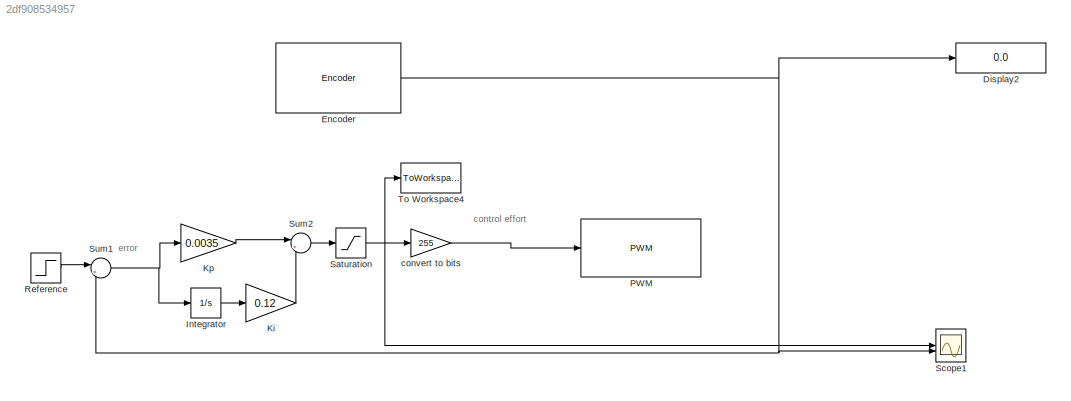
MODEL slx_2df908534957
KIND model
CONFIG AbsTol = auto
CONFIG EnableMultiTasking = on
CONFIG FixedStep = 0.1
CONFIG MaxStep = auto
CONFIG MinStep = auto
CONFIG RelTol = 1e-3
CONFIG SampleTimeConstraint = Unconstrained
CONFIG SolverName = FixedStepAuto
CONFIG StartTime = 0.0
CONFIG StopTime = inf
BLOCK [Display] Display2
  Decimation = 1
BLOCK [Reference] Encoder  REF=arduinosensorlib/Encoder
  SourceBlock = arduinosensorlib/Encoder
  SourceType = Arduino Rotary Encoder
BLOCK [Integrator] Integrator
BLOCK [Gain] Ki
  Gain = 0.12
BLOCK [Gain] Kp 
  Gain = 0.0035
BLOCK [Reference] PWM  REF=arduinolib/PWM
  SourceBlock = arduinolib/PWM
  SourceType = Arduino PWM
BLOCK [Step] Reference
  After = 130
  SampleTime = Ts
BLOCK [Saturate] Saturation
  LowerLimit = 0
  SampleTime = Ts
  UpperLimit = 1
BLOCK [Scope] Scope1
  Floating = off
  NumInputPorts = 2
  ScopeSpecificationString = Simulink.scopes.TimeScopeBlockCfg('CurrentConfiguration', extmgr.ConfigurationSet(extmgr.Configuration('Core','General UI',true),extmgr.Configuration('Core','Source UI',true),extmgr.Configuration('Sources','WiredSimulink',true,'DataLoggingSaveFormat','StructureWithTime','DataLoggingLimitDataPoints',true,'DataLoggingDecimation','1','DataLoggingDecimateData',true,'DataLoggingVariableName','ScopeData...<+2371ch>
BLOCK [Sum] Sum1
  Inputs = |+-
BLOCK [Sum] Sum2
  Inputs = |++
BLOCK [ToWorkspace] To Workspace4
  FixptAsFi = on
  MaxDataPoints = inf
  SampleTime = -1
  SaveFormat = Timeseries
  VariableName = DC
BLOCK [Gain] convert to bits
  Gain = 255
ANNOTATION (root): control effort
ANNOTATION (root): error
NET Encoder:1 -> Display2:1, Scope1:2, Sum1:2
LINE Integrator:1 -> Ki:1
LINE Ki:1 -> Sum2:2
LINE Kp :1 -> Sum2:1
LINE Reference:1 -> Sum1:1
NET Saturation:1 -> Scope1:1, To Workspace4:1, convert to bits:1
NET Sum1:1 -> Integrator:1, Kp :1
LINE Sum2:1 -> Saturation:1
LINE convert to bits:1 -> PWM:1
note: NET lines group one-source signal fan-out (src -> all destinations, sorted); 1:1 wires keep LINE
